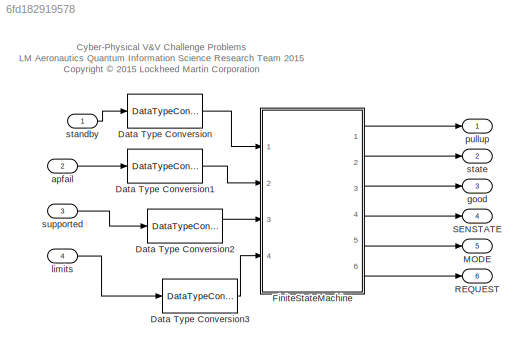
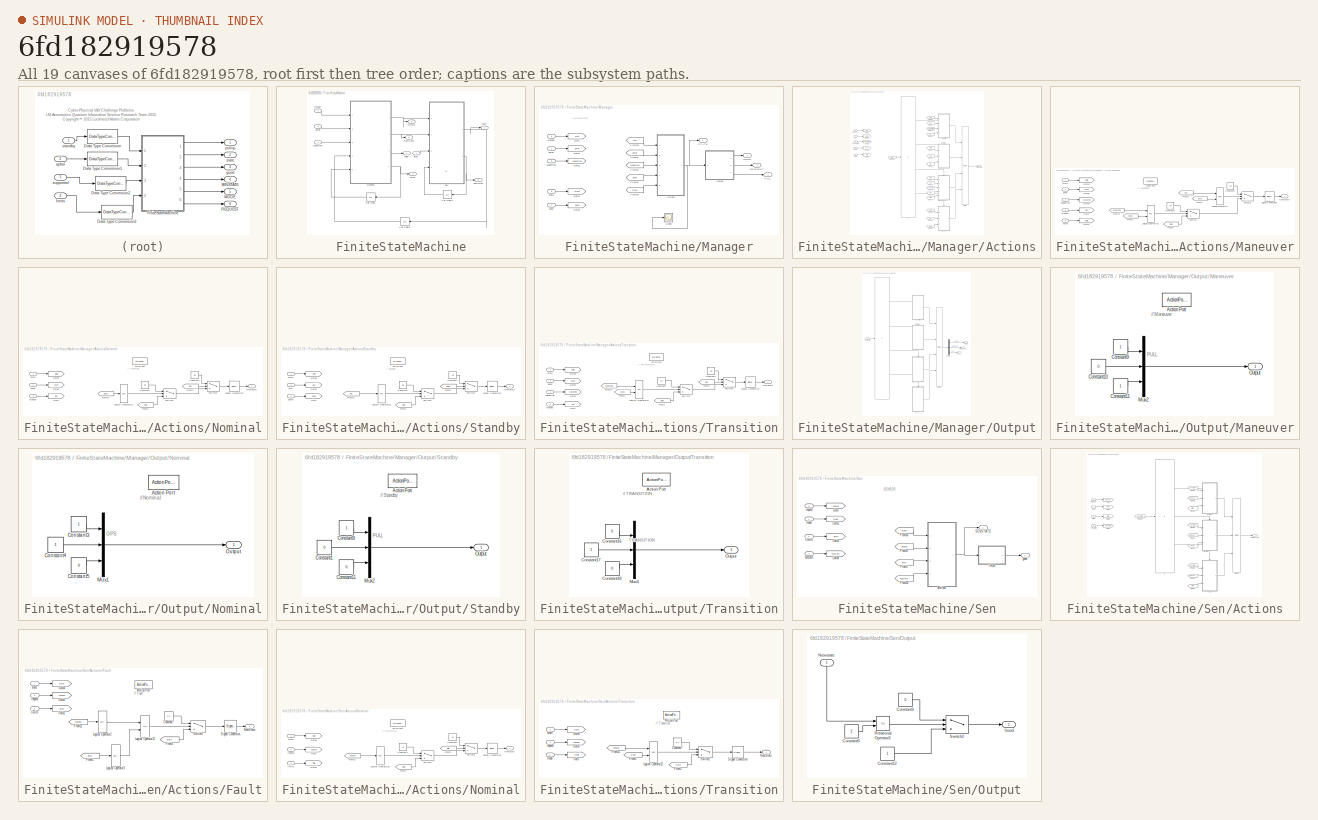
[diagram: thumbnail index - all 19 canvases of the model, root first then tree order]
MODEL slx_6fd182919578
KIND model
CONFIG AbsTol = auto
CONFIG FixedStep = auto
CONFIG MaxStep = auto
CONFIG MinStep = auto
CONFIG RelTol = 1e-3
CONFIG SampleTimeConstraint = Unconstrained
CONFIG Solver = FixedStepAuto
CONFIG SolverMode = Auto
CONFIG SolverName = FixedStepAuto
CONFIG StartTime = 0.0
CONFIG StopTime = 10
WORKSPACE source: MAT-file member
WORKSPACE F = [0 0 0 0 0 0 0 0 0 0 0 0 ... (51 elements, 51x1)]
WORKSPACE Ft = 0
BLOCK [DataTypeConversion] Data Type Conversion
  OutDataTypeStr = boolean
  RndMeth = Round
  SaturateOnIntegerOverflow = off
BLOCK [DataTypeConversion] Data Type Conversion1
  OutDataTypeStr = boolean
  RndMeth = Round
  SaturateOnIntegerOverflow = off
BLOCK [DataTypeConversion] Data Type Conversion2
  OutDataTypeStr = boolean
  RndMeth = Round
  SaturateOnIntegerOverflow = off
BLOCK [DataTypeConversion] Data Type Conversion3
  OutDataTypeStr = boolean
  RndMeth = Round
  SaturateOnIntegerOverflow = off
BLOCK [SubSystem] FiniteStateMachine
  Ports = [4, 6]
  RequestExecContextInheritance = off
  Variant = off
BLOCK [Outport] FiniteStateMachine/MODE
  IconDisplay = Port number
  Port = 5
BLOCK [SubSystem] FiniteStateMachine/Manager
  Ports = [5, 4]
  RequestExecContextInheritance = off
  Variant = off
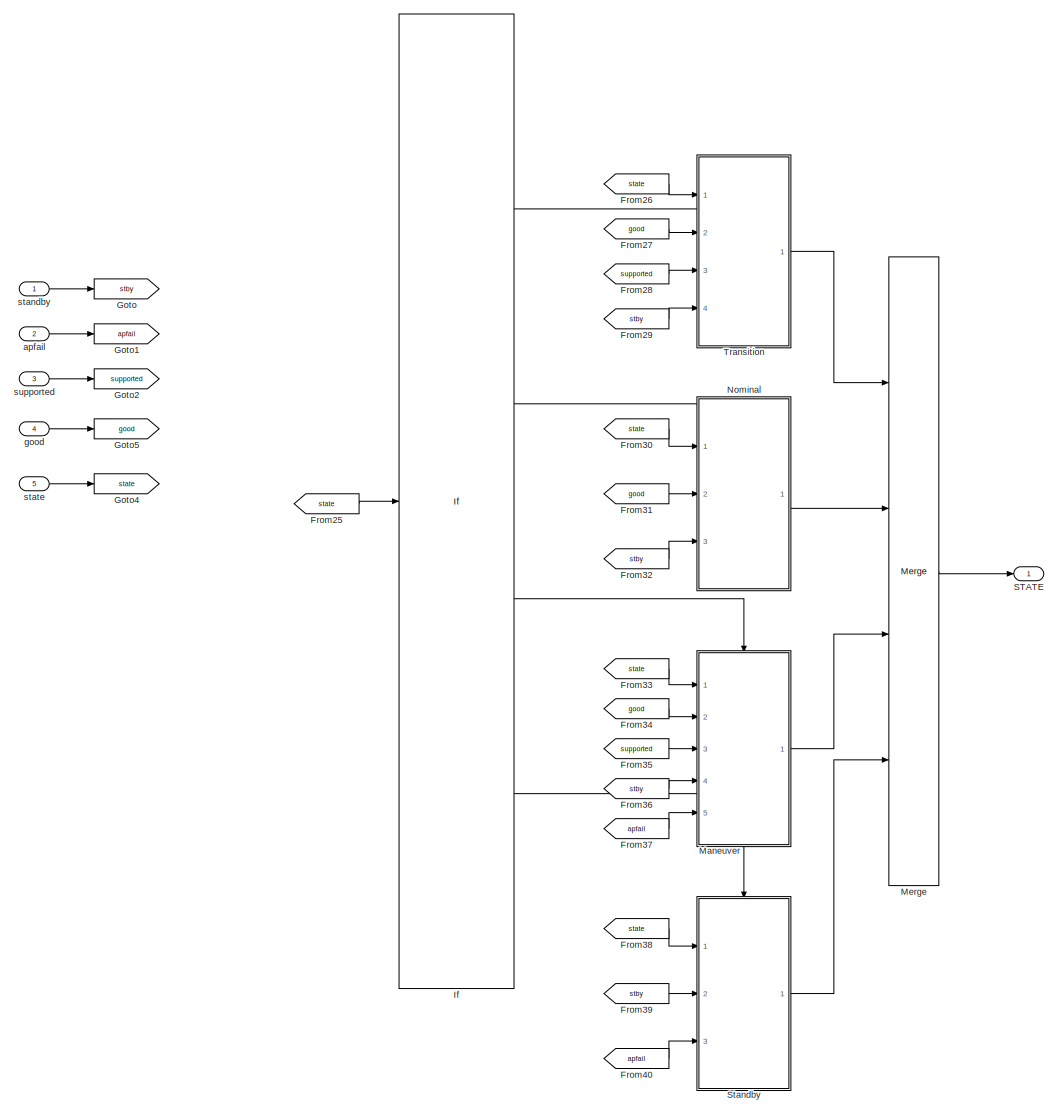
[diagram: FiniteStateMachine/Manager/Actions - part 1/1, most of the canvas]
BLOCK [SubSystem] FiniteStateMachine/Manager/Actions
  Ports = [5, 1]
  RequestExecContextInheritance = off
  Variant = off
BLOCK [From] FiniteStateMachine/Manager/Actions/From25
  GotoTag = state
BLOCK [From] FiniteStateMachine/Manager/Actions/From26
  GotoTag = state
BLOCK [From] FiniteStateMachine/Manager/Actions/From27
  GotoTag = good
BLOCK [From] FiniteStateMachine/Manager/Actions/From28
  GotoTag = supported
BLOCK [From] FiniteStateMachine/Manager/Actions/From29
  GotoTag = stby
BLOCK [From] FiniteStateMachine/Manager/Actions/From30
  GotoTag = state
BLOCK [From] FiniteStateMachine/Manager/Actions/From31
  GotoTag = good
BLOCK [From] FiniteStateMachine/Manager/Actions/From32
  GotoTag = stby
BLOCK [From] FiniteStateMachine/Manager/Actions/From33
  GotoTag = state
BLOCK [From] FiniteStateMachine/Manager/Actions/From34
  GotoTag = good
BLOCK [From] FiniteStateMachine/Manager/Actions/From35
  GotoTag = supported
BLOCK [From] FiniteStateMachine/Manager/Actions/From36
  GotoTag = stby
BLOCK [From] FiniteStateMachine/Manager/Actions/From37
  GotoTag = apfail
BLOCK [From] FiniteStateMachine/Manager/Actions/From38
  GotoTag = state
BLOCK [From] FiniteStateMachine/Manager/Actions/From39
  GotoTag = stby
BLOCK [From] FiniteStateMachine/Manager/Actions/From40
  GotoTag = apfail
BLOCK [Goto] FiniteStateMachine/Manager/Actions/Goto
  GotoTag = stby
BLOCK [Goto] FiniteStateMachine/Manager/Actions/Goto1
  GotoTag = apfail
BLOCK [Goto] FiniteStateMachine/Manager/Actions/Goto2
  GotoTag = supported
BLOCK [Goto] FiniteStateMachine/Manager/Actions/Goto4
  GotoTag = state
BLOCK [Goto] FiniteStateMachine/Manager/Actions/Goto5
  GotoTag = good
BLOCK [If] FiniteStateMachine/Manager/Actions/If
  ElseIfExpressions = u1==1.0, u1==2.0, u1==3.0
  IfExpression = u1==0.0
  Ports = [1, 4]
  ShowElse = off
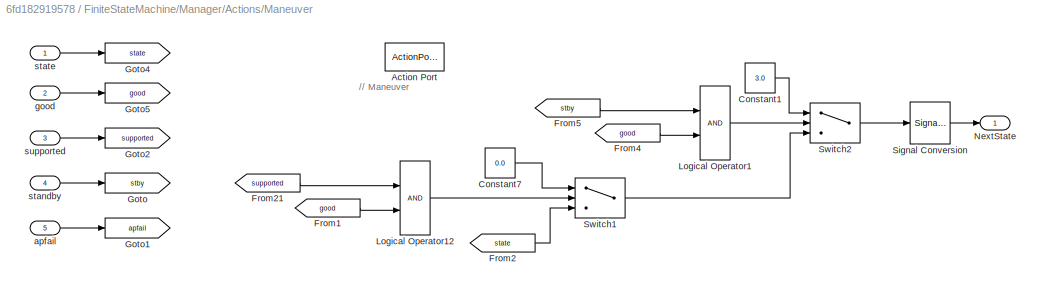
BLOCK [SubSystem] FiniteStateMachine/Manager/Actions/Maneuver
  Ports = [5, 1, 0, 0, 0, 0, 0, 1]
  RequestExecContextInheritance = off
  Variant = off
BLOCK [ActionPort] FiniteStateMachine/Manager/Actions/Maneuver/Action Port
  ActionType = elseif
BLOCK [Constant] FiniteStateMachine/Manager/Actions/Maneuver/Constant1
  Value = 3.0
BLOCK [Constant] FiniteStateMachine/Manager/Actions/Maneuver/Constant7
  Value = 0.0
BLOCK [From] FiniteStateMachine/Manager/Actions/Maneuver/From1
  GotoTag = good
BLOCK [From] FiniteStateMachine/Manager/Actions/Maneuver/From2
  GotoTag = state
BLOCK [From] FiniteStateMachine/Manager/Actions/Maneuver/From21
  GotoTag = supported
BLOCK [From] FiniteStateMachine/Manager/Actions/Maneuver/From4
  GotoTag = good
BLOCK [From] FiniteStateMachine/Manager/Actions/Maneuver/From5
  GotoTag = stby
BLOCK [Goto] FiniteStateMachine/Manager/Actions/Maneuver/Goto
  GotoTag = stby
BLOCK [Goto] FiniteStateMachine/Manager/Actions/Maneuver/Goto1
  GotoTag = apfail
BLOCK [Goto] FiniteStateMachine/Manager/Actions/Maneuver/Goto2
  GotoTag = supported
BLOCK [Goto] FiniteStateMachine/Manager/Actions/Maneuver/Goto4
  GotoTag = state
BLOCK [Goto] FiniteStateMachine/Manager/Actions/Maneuver/Goto5
  GotoTag = good
BLOCK [Logic] FiniteStateMachine/Manager/Actions/Maneuver/Logical Operator1
  AllPortsSameDT = off
  IconShape = distinctive
  OutDataTypeStr = boolean
  Ports = [2, 1]
BLOCK [Logic] FiniteStateMachine/Manager/Actions/Maneuver/Logical Operator12
  AllPortsSameDT = off
  IconShape = distinctive
  OutDataTypeStr = boolean
  Ports = [2, 1]
BLOCK [Outport] FiniteStateMachine/Manager/Actions/Maneuver/NextState
  IconDisplay = Port number
BLOCK [SignalConversion] FiniteStateMachine/Manager/Actions/Maneuver/Signal Conversion
  OverrideOpt = off
BLOCK [Switch] FiniteStateMachine/Manager/Actions/Maneuver/Switch1
  Criteria = u2 ~= 0
  InputSameDT = off
  SaturateOnIntegerOverflow = off
BLOCK [Switch] FiniteStateMachine/Manager/Actions/Maneuver/Switch2
  Criteria = u2 ~= 0
  InputSameDT = off
  SaturateOnIntegerOverflow = off
BLOCK [Inport] FiniteStateMachine/Manager/Actions/Maneuver/apfail
  IconDisplay = Port number
  Port = 5
BLOCK [Inport] FiniteStateMachine/Manager/Actions/Maneuver/good
  IconDisplay = Port number
  Port = 2
BLOCK [Inport] FiniteStateMachine/Manager/Actions/Maneuver/standby
  IconDisplay = Port number
  Port = 4
BLOCK [Inport] FiniteStateMachine/Manager/Actions/Maneuver/state
  IconDisplay = Port number
BLOCK [Inport] FiniteStateMachine/Manager/Actions/Maneuver/supported
  IconDisplay = Port number
  Port = 3
BLOCK [Merge] FiniteStateMachine/Manager/Actions/Merge
  Inputs = 4
  Ports = [4, 1]
BLOCK [SubSystem] FiniteStateMachine/Manager/Actions/Nominal
  Ports = [3, 1, 0, 0, 0, 0, 0, 1]
  RequestExecContextInheritance = off
  Variant = off
BLOCK [ActionPort] FiniteStateMachine/Manager/Actions/Nominal/Action Port
  ActionType = elseif
BLOCK [Constant] FiniteStateMachine/Manager/Actions/Nominal/Constant1
  Value = 3.0
BLOCK [Constant] FiniteStateMachine/Manager/Actions/Nominal/Constant7
  Value = 2.0
BLOCK [From] FiniteStateMachine/Manager/Actions/Nominal/From2
  GotoTag = state
BLOCK [From] FiniteStateMachine/Manager/Actions/Nominal/From21
  GotoTag = good
BLOCK [From] FiniteStateMachine/Manager/Actions/Nominal/From3
  GotoTag = stby
BLOCK [Goto] FiniteStateMachine/Manager/Actions/Nominal/Goto
  GotoTag = stby
BLOCK [Goto] FiniteStateMachine/Manager/Actions/Nominal/Goto5
  GotoTag = good
BLOCK [Goto] FiniteStateMachine/Manager/Actions/Nominal/Goto9
  GotoTag = state
BLOCK [Logic] FiniteStateMachine/Manager/Actions/Nominal/Logical Operator12
  AllPortsSameDT = off
  IconShape = distinctive
  Operator = NOT
  OutDataTypeStr = boolean
  Ports = [1, 1]
BLOCK [Outport] FiniteStateMachine/Manager/Actions/Nominal/NextState
  IconDisplay = Port number
BLOCK [SignalConversion] FiniteStateMachine/Manager/Actions/Nominal/Signal Conversion
  OverrideOpt = off
BLOCK [Switch] FiniteStateMachine/Manager/Actions/Nominal/Switch1
  Criteria = u2 ~= 0
  InputSameDT = off
  SaturateOnIntegerOverflow = off
BLOCK [Switch] FiniteStateMachine/Manager/Actions/Nominal/Switch2
  Criteria = u2 ~= 0
  InputSameDT = off
  SaturateOnIntegerOverflow = off
BLOCK [Inport] FiniteStateMachine/Manager/Actions/Nominal/good
  IconDisplay = Port number
  Port = 2
BLOCK [Inport] FiniteStateMachine/Manager/Actions/Nominal/standby
  IconDisplay = Port number
  Port = 3
BLOCK [Inport] FiniteStateMachine/Manager/Actions/Nominal/state
  IconDisplay = Port number
BLOCK [Outport] FiniteStateMachine/Manager/Actions/STATE
  IconDisplay = Port number
BLOCK [SubSystem] FiniteStateMachine/Manager/Actions/Standby
  Ports = [3, 1, 0, 0, 0, 0, 0, 1]
  RequestExecContextInheritance = off
  Variant = off
BLOCK [ActionPort] FiniteStateMachine/Manager/Actions/Standby/Action Port
  ActionType = elseif
BLOCK [Constant] FiniteStateMachine/Manager/Actions/Standby/Constant1
  Value = 2.0
BLOCK [Constant] FiniteStateMachine/Manager/Actions/Standby/Constant7
  Value = 0.0
BLOCK [From] FiniteStateMachine/Manager/Actions/Standby/From2
  GotoTag = state
BLOCK [From] FiniteStateMachine/Manager/Actions/Standby/From21
  GotoTag = stby
BLOCK [From] FiniteStateMachine/Manager/Actions/Standby/From3
  GotoTag = apfail
BLOCK [Goto] FiniteStateMachine/Manager/Actions/Standby/Goto
  GotoTag = apfail
BLOCK [Goto] FiniteStateMachine/Manager/Actions/Standby/Goto5
  GotoTag = stby
BLOCK [Goto] FiniteStateMachine/Manager/Actions/Standby/Goto9
  GotoTag = state
BLOCK [Logic] FiniteStateMachine/Manager/Actions/Standby/Logical Operator12
  AllPortsSameDT = off
  IconShape = distinctive
  Operator = NOT
  OutDataTypeStr = boolean
  Ports = [1, 1]
BLOCK [Outport] FiniteStateMachine/Manager/Actions/Standby/NextState
  IconDisplay = Port number
BLOCK [SignalConversion] FiniteStateMachine/Manager/Actions/Standby/Signal Conversion
  OverrideOpt = off
BLOCK [Switch] FiniteStateMachine/Manager/Actions/Standby/Switch1
  Criteria = u2 ~= 0
  InputSameDT = off
  SaturateOnIntegerOverflow = off
BLOCK [Switch] FiniteStateMachine/Manager/Actions/Standby/Switch2
  Criteria = u2 ~= 0
  InputSameDT = off
  SaturateOnIntegerOverflow = off
BLOCK [Inport] FiniteStateMachine/Manager/Actions/Standby/apfail
  IconDisplay = Port number
  Port = 3
BLOCK [Inport] FiniteStateMachine/Manager/Actions/Standby/state
  IconDisplay = Port number
BLOCK [Inport] FiniteStateMachine/Manager/Actions/Standby/stby
  IconDisplay = Port number
  Port = 2
BLOCK [SubSystem] FiniteStateMachine/Manager/Actions/Transition
  Ports = [4, 1, 0, 0, 0, 0, 0, 1]
  RequestExecContextInheritance = off
  Variant = off
BLOCK [ActionPort] FiniteStateMachine/Manager/Actions/Transition/Action Port
  ActionType = then
BLOCK [Constant] FiniteStateMachine/Manager/Actions/Transition/Constant1
  Value = 3.0
BLOCK [Constant] FiniteStateMachine/Manager/Actions/Transition/Constant7
  Value = 1.0
BLOCK [From] FiniteStateMachine/Manager/Actions/Transition/From1
  GotoTag = good
BLOCK [From] FiniteStateMachine/Manager/Actions/Transition/From2
  GotoTag = state
BLOCK [From] FiniteStateMachine/Manager/Actions/Transition/From21
  GotoTag = supported
BLOCK [From] FiniteStateMachine/Manager/Actions/Transition/From3
  GotoTag = stby
BLOCK [Goto] FiniteStateMachine/Manager/Actions/Transition/Goto
  GotoTag = stby
BLOCK [Goto] FiniteStateMachine/Manager/Actions/Transition/Goto2
  GotoTag = supported
BLOCK [Goto] FiniteStateMachine/Manager/Actions/Transition/Goto5
  GotoTag = good
BLOCK [Goto] FiniteStateMachine/Manager/Actions/Transition/Goto9
  GotoTag = state
BLOCK [Logic] FiniteStateMachine/Manager/Actions/Transition/Logical Operator12
  AllPortsSameDT = off
  IconShape = distinctive
  OutDataTypeStr = boolean
  Ports = [2, 1]
BLOCK [Outport] FiniteStateMachine/Manager/Actions/Transition/NextState
  IconDisplay = Port number
BLOCK [SignalConversion] FiniteStateMachine/Manager/Actions/Transition/Signal Conversion
  OverrideOpt = off
BLOCK [Switch] FiniteStateMachine/Manager/Actions/Transition/Switch1
  Criteria = u2 ~= 0
  InputSameDT = off
  SaturateOnIntegerOverflow = off
BLOCK [Switch] FiniteStateMachine/Manager/Actions/Transition/Switch2
  Criteria = u2 ~= 0
  InputSameDT = off
  SaturateOnIntegerOverflow = off
BLOCK [Inport] FiniteStateMachine/Manager/Actions/Transition/good
  IconDisplay = Port number
  Port = 2
BLOCK [Inport] FiniteStateMachine/Manager/Actions/Transition/standby
  IconDisplay = Port number
  Port = 4
BLOCK [Inport] FiniteStateMachine/Manager/Actions/Transition/state
  IconDisplay = Port number
BLOCK [Inport] FiniteStateMachine/Manager/Actions/Transition/supported
  IconDisplay = Port number
  Port = 3
BLOCK [Inport] FiniteStateMachine/Manager/Actions/apfail
  IconDisplay = Port number
  Port = 2
BLOCK [Inport] FiniteStateMachine/Manager/Actions/good
  IconDisplay = Port number
  Port = 4
BLOCK [Inport] FiniteStateMachine/Manager/Actions/standby
  IconDisplay = Port number
BLOCK [Inport] FiniteStateMachine/Manager/Actions/state
  IconDisplay = Port number
  Port = 5
BLOCK [Inport] FiniteStateMachine/Manager/Actions/supported
  IconDisplay = Port number
  Port = 3
BLOCK [From] FiniteStateMachine/Manager/From33
  GotoTag = state
BLOCK [From] FiniteStateMachine/Manager/From34
  GotoTag = good
BLOCK [From] FiniteStateMachine/Manager/From35
  GotoTag = supported
BLOCK [From] FiniteStateMachine/Manager/From36
  GotoTag = stby
BLOCK [From] FiniteStateMachine/Manager/From37
  GotoTag = apfail
BLOCK [Goto] FiniteStateMachine/Manager/Goto
  GotoTag = stby
BLOCK [Goto] FiniteStateMachine/Manager/Goto1
  GotoTag = apfail
BLOCK [Goto] FiniteStateMachine/Manager/Goto2
  GotoTag = supported
BLOCK [Goto] FiniteStateMachine/Manager/Goto4
  GotoTag = state
BLOCK [Goto] FiniteStateMachine/Manager/Goto5
  GotoTag = good
BLOCK [Outport] FiniteStateMachine/Manager/MODE
  IconDisplay = Port number
BLOCK [SubSystem] FiniteStateMachine/Manager/Output
  Ports = [1, 3]
  RequestExecContextInheritance = off
  Variant = off
BLOCK [Demux] FiniteStateMachine/Manager/Output/Demux
  DisplayOption = bar
  Outputs = 3
  Ports = [1, 3]
BLOCK [If] FiniteStateMachine/Manager/Output/If
  ElseIfExpressions = u1==1.0, u1==2.0, u1==3.0
  IfExpression = u1==0.0
  Ports = [1, 4]
  ShowElse = off
BLOCK [Outport] FiniteStateMachine/Manager/Output/MODE
  IconDisplay = Port number
BLOCK [SubSystem] FiniteStateMachine/Manager/Output/Maneuver
  Ports = [0, 1, 0, 0, 0, 0, 0, 1]
  RequestExecContextInheritance = off
  Variant = off
BLOCK [ActionPort] FiniteStateMachine/Manager/Output/Maneuver/Action Port
  ActionType = elseif
BLOCK [Constant] FiniteStateMachine/Manager/Output/Maneuver/Constant10
  OutDataTypeStr = boolean
  Value = 0
BLOCK [Constant] FiniteStateMachine/Manager/Output/Maneuver/Constant11
  OutDataTypeStr = boolean
BLOCK [Constant] FiniteStateMachine/Manager/Output/Maneuver/Constant9
  OutDataTypeStr = boolean
BLOCK [Mux] FiniteStateMachine/Manager/Output/Maneuver/Mux2
  DisplayOption = bar
  Inputs = 3
  Ports = [3, 1]
BLOCK [Outport] FiniteStateMachine/Manager/Output/Maneuver/Output
  IconDisplay = Port number
BLOCK [Merge] FiniteStateMachine/Manager/Output/Merge
  Inputs = 4
  Ports = [4, 1]
BLOCK [Inport] FiniteStateMachine/Manager/Output/Newstate
  IconDisplay = Port number
BLOCK [SubSystem] FiniteStateMachine/Manager/Output/Nominal
  Ports = [0, 1, 0, 0, 0, 0, 0, 1]
  RequestExecContextInheritance = off
  Variant = off
BLOCK [ActionPort] FiniteStateMachine/Manager/Output/Nominal/Action Port
  ActionType = elseif
BLOCK [Constant] FiniteStateMachine/Manager/Output/Nominal/Constant3
  OutDataTypeStr = boolean
BLOCK [Constant] FiniteStateMachine/Manager/Output/Nominal/Constant4
  OutDataTypeStr = boolean
BLOCK [Constant] FiniteStateMachine/Manager/Output/Nominal/Constant5
  OutDataTypeStr = boolean
  Value = 0
BLOCK [Mux] FiniteStateMachine/Manager/Output/Nominal/Mux1
  DisplayOption = bar
  Inputs = 3
  Ports = [3, 1]
BLOCK [Outport] FiniteStateMachine/Manager/Output/Nominal/Output
  IconDisplay = Port number
BLOCK [Outport] FiniteStateMachine/Manager/Output/PULL
  IconDisplay = Port number
  Port = 3
BLOCK [Outport] FiniteStateMachine/Manager/Output/REQUEST
  IconDisplay = Port number
  Port = 2
BLOCK [SubSystem] FiniteStateMachine/Manager/Output/Standby
  Ports = [0, 1, 0, 0, 0, 0, 0, 1]
  RequestExecContextInheritance = off
  Variant = off
BLOCK [ActionPort] FiniteStateMachine/Manager/Output/Standby/Action Port
  ActionType = elseif
BLOCK [Constant] FiniteStateMachine/Manager/Output/Standby/Constant1
  OutDataTypeStr = boolean
  Value = 0
BLOCK [Constant] FiniteStateMachine/Manager/Output/Standby/Constant11
  OutDataTypeStr = boolean
  Value = 0
BLOCK [Constant] FiniteStateMachine/Manager/Output/Standby/Constant9
  OutDataTypeStr = boolean
BLOCK [Mux] FiniteStateMachine/Manager/Output/Standby/Mux2
  DisplayOption = bar
  Inputs = 3
  Ports = [3, 1]
BLOCK [Outport] FiniteStateMachine/Manager/Output/Standby/Output
  IconDisplay = Port number
BLOCK [SubSystem] FiniteStateMachine/Manager/Output/Transition
  Ports = [0, 1, 0, 0, 0, 0, 0, 1]
  RequestExecContextInheritance = off
  Variant = off
BLOCK [ActionPort] FiniteStateMachine/Manager/Output/Transition/Action Port
  ActionType = then
BLOCK [Constant] FiniteStateMachine/Manager/Output/Transition/Constant16
  OutDataTypeStr = boolean
  Value = 0
BLOCK [Constant] FiniteStateMachine/Manager/Output/Transition/Constant17
  OutDataTypeStr = boolean
BLOCK [Constant] FiniteStateMachine/Manager/Output/Transition/Constant18
  OutDataTypeStr = boolean
  Value = 0
BLOCK [Mux] FiniteStateMachine/Manager/Output/Transition/Mux4
  DisplayOption = bar
  Inputs = 3
  Ports = [3, 1]
BLOCK [Outport] FiniteStateMachine/Manager/Output/Transition/Output
  IconDisplay = Port number
BLOCK [Outport] FiniteStateMachine/Manager/PULL
  IconDisplay = Port number
  Port = 3
BLOCK [Outport] FiniteStateMachine/Manager/REQUEST
  IconDisplay = Port number
  Port = 2
BLOCK [Outport] FiniteStateMachine/Manager/STATE
  IconDisplay = Port number
  Port = 4
BLOCK [Scope] FiniteStateMachine/Manager/Scope
  Ports = [1]
  ScopeSpecificationString = Simulink.scopes.TimeScopeBlockCfg('CurrentConfiguration', extmgr.ConfigurationSet(extmgr.Configuration('Core','General UI',true),extmgr.Configuration('Core','Source UI',true),extmgr.Configuration('Sources','WiredSimulink',true,'DataLoggingVariableName','ScopeData1'),extmgr.Configuration('Visuals','Time Domain',true,'SerializedDisplays',{struct('MinYLimReal','-1.00000','MaxYLimReal','1.00000','YLab...<+1395ch>
BLOCK [Inport] FiniteStateMachine/Manager/apfail
  IconDisplay = Port number
  Port = 2
BLOCK [Inport] FiniteStateMachine/Manager/good
  IconDisplay = Port number
  Port = 4
BLOCK [Inport] FiniteStateMachine/Manager/standby
  IconDisplay = Port number
BLOCK [Inport] FiniteStateMachine/Manager/state
  IconDisplay = Port number
  Port = 5
BLOCK [Inport] FiniteStateMachine/Manager/supported
  IconDisplay = Port number
  Port = 3
BLOCK [Outport] FiniteStateMachine/REQUEST
  IconDisplay = Port number
  Port = 6
BLOCK [Outport] FiniteStateMachine/SENSTATE
  IconDisplay = Port number
  Port = 4
BLOCK [Outport] FiniteStateMachine/STATE
  IconDisplay = Port number
  Port = 2
BLOCK [SubSystem] FiniteStateMachine/Sen
  Ports = [4, 2]
  RequestExecContextInheritance = off
  Variant = off
BLOCK [SubSystem] FiniteStateMachine/Sen/Actions
  Ports = [4, 1]
  RequestExecContextInheritance = off
  Variant = off
BLOCK [SubSystem] FiniteStateMachine/Sen/Actions/Fault
  Ports = [3, 1, 0, 0, 0, 0, 0, 1]
  RequestExecContextInheritance = off
  Variant = off
BLOCK [ActionPort] FiniteStateMachine/Sen/Actions/Fault/Action Port
  ActionType = elseif
BLOCK [Constant] FiniteStateMachine/Sen/Actions/Fault/Constant7
  Value = 1.0
BLOCK [From] FiniteStateMachine/Sen/Actions/Fault/From1
  GotoTag = limits
BLOCK [From] FiniteStateMachine/Sen/Actions/Fault/From2
  GotoTag = state
BLOCK [From] FiniteStateMachine/Sen/Actions/Fault/From21
  GotoTag = request
BLOCK [Goto] FiniteStateMachine/Sen/Actions/Fault/Goto2
  GotoTag = limits
BLOCK [Goto] FiniteStateMachine/Sen/Actions/Fault/Goto4
  GotoTag = state
BLOCK [Goto] FiniteStateMachine/Sen/Actions/Fault/Goto5
  GotoTag = request
BLOCK [Logic] FiniteStateMachine/Sen/Actions/Fault/Logical Operator12
  AllPortsSameDT = off
  IconShape = distinctive
  Operator = OR
  OutDataTypeStr = boolean
  Ports = [2, 1]
BLOCK [Logic] FiniteStateMachine/Sen/Actions/Fault/Logical Operator2
  AllPortsSameDT = off
  IconShape = distinctive
  Operator = NOT
  OutDataTypeStr = boolean
  Ports = [1, 1]
BLOCK [Logic] FiniteStateMachine/Sen/Actions/Fault/Logical Operator3
  AllPortsSameDT = off
  IconShape = distinctive
  Operator = NOT
  OutDataTypeStr = boolean
  Ports = [1, 1]
BLOCK [Outport] FiniteStateMachine/Sen/Actions/Fault/NextState
  IconDisplay = Port number
BLOCK [SignalConversion] FiniteStateMachine/Sen/Actions/Fault/Signal Conversion
  OverrideOpt = off
BLOCK [Switch] FiniteStateMachine/Sen/Actions/Fault/Switch1
  Criteria = u2 ~= 0
  InputSameDT = off
  SaturateOnIntegerOverflow = off
BLOCK [Inport] FiniteStateMachine/Sen/Actions/Fault/limits
  IconDisplay = Port number
  Port = 3
BLOCK [Inport] FiniteStateMachine/Sen/Actions/Fault/request
  IconDisplay = Port number
  Port = 2
BLOCK [Inport] FiniteStateMachine/Sen/Actions/Fault/state
  IconDisplay = Port number
BLOCK [From] FiniteStateMachine/Sen/Actions/From25
  GotoTag = senstate
BLOCK [From] FiniteStateMachine/Sen/Actions/From26
  GotoTag = senstate
BLOCK [From] FiniteStateMachine/Sen/Actions/From28
  GotoTag = request
BLOCK [From] FiniteStateMachine/Sen/Actions/From29
  GotoTag = limits
BLOCK [From] FiniteStateMachine/Sen/Actions/From30
  GotoTag = senstate
BLOCK [From] FiniteStateMachine/Sen/Actions/From31
  GotoTag = request
BLOCK [From] FiniteStateMachine/Sen/Actions/From32
  GotoTag = mode
BLOCK [From] FiniteStateMachine/Sen/Actions/From33
  GotoTag = senstate
BLOCK [From] FiniteStateMachine/Sen/Actions/From34
  GotoTag = request
BLOCK [From] FiniteStateMachine/Sen/Actions/From35
  GotoTag = limits
BLOCK [Goto] FiniteStateMachine/Sen/Actions/Goto
  GotoTag = request
BLOCK [Goto] FiniteStateMachine/Sen/Actions/Goto1
  GotoTag = mode
BLOCK [Goto] FiniteStateMachine/Sen/Actions/Goto3
  GotoTag = limits
BLOCK [Goto] FiniteStateMachine/Sen/Actions/Goto4
  GotoTag = senstate
BLOCK [If] FiniteStateMachine/Sen/Actions/If
  ElseIfExpressions = u1==1.0, u1==2.0
  IfExpression = u1==0.0
  Ports = [1, 3]
  ShowElse = off
BLOCK [Merge] FiniteStateMachine/Sen/Actions/Merge
  Inputs = 3
  Ports = [3, 1]
BLOCK [SubSystem] FiniteStateMachine/Sen/Actions/Nominal
  Ports = [3, 1, 0, 0, 0, 0, 0, 1]
  RequestExecContextInheritance = off
  Variant = off
BLOCK [ActionPort] FiniteStateMachine/Sen/Actions/Nominal/Action Port
  ActionType = then
BLOCK [Constant] FiniteStateMachine/Sen/Actions/Nominal/Constant1
  Value = 2.0
BLOCK [Constant] FiniteStateMachine/Sen/Actions/Nominal/Constant7
  Value = 1.0
BLOCK [From] FiniteStateMachine/Sen/Actions/Nominal/From2
  GotoTag = state
BLOCK [From] FiniteStateMachine/Sen/Actions/Nominal/From21
  GotoTag = request
BLOCK [From] FiniteStateMachine/Sen/Actions/Nominal/From3
  GotoTag = limits
BLOCK [Goto] FiniteStateMachine/Sen/Actions/Nominal/Goto
  GotoTag = request
BLOCK [Goto] FiniteStateMachine/Sen/Actions/Nominal/Goto3
  GotoTag = limits
BLOCK [Goto] FiniteStateMachine/Sen/Actions/Nominal/Goto9
  GotoTag = state
BLOCK [Logic] FiniteStateMachine/Sen/Actions/Nominal/Logical Operator12
  AllPortsSameDT = off
  IconShape = distinctive
  Operator = NOT
  OutDataTypeStr = boolean
  Ports = [1, 1]
BLOCK [Outport] FiniteStateMachine/Sen/Actions/Nominal/NextState
  IconDisplay = Port number
BLOCK [SignalConversion] FiniteStateMachine/Sen/Actions/Nominal/Signal Conversion
  OverrideOpt = off
BLOCK [Switch] FiniteStateMachine/Sen/Actions/Nominal/Switch1
  Criteria = u2 ~= 0
  InputSameDT = off
  SaturateOnIntegerOverflow = off
BLOCK [Switch] FiniteStateMachine/Sen/Actions/Nominal/Switch2
  Criteria = u2 ~= 0
  InputSameDT = off
  SaturateOnIntegerOverflow = off
BLOCK [Inport] FiniteStateMachine/Sen/Actions/Nominal/limits
  IconDisplay = Port number
  Port = 3
BLOCK [Inport] FiniteStateMachine/Sen/Actions/Nominal/request
  IconDisplay = Port number
  Port = 2
BLOCK [Inport] FiniteStateMachine/Sen/Actions/Nominal/state
  IconDisplay = Port number
BLOCK [Outport] FiniteStateMachine/Sen/Actions/SENSTATE
  IconDisplay = Port number
BLOCK [SubSystem] FiniteStateMachine/Sen/Actions/Transition
  Ports = [3, 1, 0, 0, 0, 0, 0, 1]
  RequestExecContextInheritance = off
  Variant = off
BLOCK [ActionPort] FiniteStateMachine/Sen/Actions/Transition/Action Port
  ActionType = elseif
BLOCK [Constant] FiniteStateMachine/Sen/Actions/Transition/Constant7
  Value = 0.0
BLOCK [From] FiniteStateMachine/Sen/Actions/Transition/From1
  GotoTag = mode
BLOCK [From] FiniteStateMachine/Sen/Actions/Transition/From2
  GotoTag = state
BLOCK [From] FiniteStateMachine/Sen/Actions/Transition/From21
  GotoTag = request
BLOCK [Goto] FiniteStateMachine/Sen/Actions/Transition/Goto
  GotoTag = mode
BLOCK [Goto] FiniteStateMachine/Sen/Actions/Transition/Goto5
  GotoTag = request
BLOCK [Goto] FiniteStateMachine/Sen/Actions/Transition/Goto9
  GotoTag = state
BLOCK [Logic] FiniteStateMachine/Sen/Actions/Transition/Logical Operator12
  AllPortsSameDT = off
  IconShape = distinctive
  OutDataTypeStr = boolean
  Ports = [2, 1]
BLOCK [Outport] FiniteStateMachine/Sen/Actions/Transition/NextState
  IconDisplay = Port number
BLOCK [SignalConversion] FiniteStateMachine/Sen/Actions/Transition/Signal Conversion
  OverrideOpt = off
BLOCK [Switch] FiniteStateMachine/Sen/Actions/Transition/Switch1
  Criteria = u2 ~= 0
  InputSameDT = off
  SaturateOnIntegerOverflow = off
BLOCK [Inport] FiniteStateMachine/Sen/Actions/Transition/mode
  IconDisplay = Port number
  Port = 3
BLOCK [Inport] FiniteStateMachine/Sen/Actions/Transition/request
  IconDisplay = Port number
  Port = 2
BLOCK [Inport] FiniteStateMachine/Sen/Actions/Transition/state
  IconDisplay = Port number
BLOCK [Inport] FiniteStateMachine/Sen/Actions/limits
  IconDisplay = Port number
  Port = 3
BLOCK [Inport] FiniteStateMachine/Sen/Actions/mode
  IconDisplay = Port number
BLOCK [Inport] FiniteStateMachine/Sen/Actions/request
  IconDisplay = Port number
  Port = 2
BLOCK [Inport] FiniteStateMachine/Sen/Actions/senstate
  IconDisplay = Port number
  Port = 4
BLOCK [From] FiniteStateMachine/Sen/From1
  GotoTag = limits
BLOCK [From] FiniteStateMachine/Sen/From33
  GotoTag = senstate
BLOCK [From] FiniteStateMachine/Sen/From36
  GotoTag = mode
BLOCK [From] FiniteStateMachine/Sen/From37
  GotoTag = request
BLOCK [Goto] FiniteStateMachine/Sen/Goto
  GotoTag = request
BLOCK [Goto] FiniteStateMachine/Sen/Goto1
  GotoTag = mode
BLOCK [Goto] FiniteStateMachine/Sen/Goto3
  GotoTag = limits
BLOCK [Goto] FiniteStateMachine/Sen/Goto4
  GotoTag = senstate
BLOCK [SubSystem] FiniteStateMachine/Sen/Output
  Ports = [1, 1]
  RequestExecContextInheritance = off
  Variant = off
BLOCK [Constant] FiniteStateMachine/Sen/Output/Constant12
  OutDataTypeStr = boolean
BLOCK [Constant] FiniteStateMachine/Sen/Output/Constant6
  Value = 2
BLOCK [Constant] FiniteStateMachine/Sen/Output/Constant9
  OutDataTypeStr = boolean
  Value = 0
BLOCK [Outport] FiniteStateMachine/Sen/Output/Good
  IconDisplay = Port number
BLOCK [Inport] FiniteStateMachine/Sen/Output/Newstate
  IconDisplay = Port number
BLOCK [RelationalOperator] FiniteStateMachine/Sen/Output/Relational Operator5
  InputSameDT = off
  Operator = ==
  OutDataTypeStr = boolean
  Ports = [2, 1]
BLOCK [Switch] FiniteStateMachine/Sen/Output/Switch2
  Criteria = u2 ~= 0
  InputSameDT = off
  SaturateOnIntegerOverflow = off
BLOCK [Outport] FiniteStateMachine/Sen/SENSTATE
  IconDisplay = Port number
  Port = 2
BLOCK [Outport] FiniteStateMachine/Sen/good
  IconDisplay = Port number
BLOCK [Inport] FiniteStateMachine/Sen/limits
  IconDisplay = Port number
  Port = 3
BLOCK [Inport] FiniteStateMachine/Sen/mode
  IconDisplay = Port number
BLOCK [Inport] FiniteStateMachine/Sen/request
  IconDisplay = Port number
  Port = 2
BLOCK [Inport] FiniteStateMachine/Sen/senstate
  IconDisplay = Port number
  Port = 4
BLOCK [UnitDelay] FiniteStateMachine/Unit Delay
  InputProcessing = Elements as channels (sample based)
  SampleTime = -1
BLOCK [UnitDelay] FiniteStateMachine/Unit Delay1
  InputProcessing = Elements as channels (sample based)
  SampleTime = -1
BLOCK [UnitDelay] FiniteStateMachine/Unit Delay2
  InitialCondition = 1
  InputProcessing = Elements as channels (sample based)
  SampleTime = -1
BLOCK [Inport] FiniteStateMachine/apfail
  IconDisplay = Port number
  Port = 2
BLOCK [Outport] FiniteStateMachine/good
  IconDisplay = Port number
  Port = 3
BLOCK [Inport] FiniteStateMachine/limits
  IconDisplay = Port number
  Port = 4
BLOCK [Outport] FiniteStateMachine/pullup
  IconDisplay = Port number
BLOCK [Inport] FiniteStateMachine/standby
  IconDisplay = Port number
BLOCK [Inport] FiniteStateMachine/supported
  IconDisplay = Port number
  Port = 3
BLOCK [Outport] MODE
  IconDisplay = Port number
  Port = 5
BLOCK [Outport] REQUEST
  IconDisplay = Port number
  Port = 6
BLOCK [Outport] SENSTATE
  IconDisplay = Port number
  Port = 4
BLOCK [Inport] apfail
  IconDisplay = Port number
  OutDataTypeStr = double
  Port = 2
BLOCK [Outport] good
  IconDisplay = Port number
  Port = 3
BLOCK [Inport] limits
  IconDisplay = Port number
  OutDataTypeStr = double
  Port = 4
BLOCK [Outport] pullup
  IconDisplay = Port number
BLOCK [Inport] standby
  IconDisplay = Port number
  OutDataTypeStr = double
BLOCK [Outport] state
  IconDisplay = Port number
  Port = 2
BLOCK [Inport] supported
  IconDisplay = Port number
  OutDataTypeStr = double
  Port = 3
ANNOTATION (root): Cyber-Physical V&V Challenge Problems LM Aeronautics Quantum Information Science Research Team 2015 <copyright redacted>
ANNOTATION FiniteStateMachine: 51
ANNOTATION FiniteStateMachine/Manager: AUTOPILOT
ANNOTATION FiniteStateMachine/Manager/Actions/Maneuver: // Maneuver
ANNOTATION FiniteStateMachine/Manager/Actions/Nominal: // Nominal
ANNOTATION FiniteStateMachine/Manager/Actions/Standby: // Standby
ANNOTATION FiniteStateMachine/Manager/Actions/Transition: // TRANSITION
ANNOTATION FiniteStateMachine/Manager/Output/Maneuver: // Maneuver
ANNOTATION FiniteStateMachine/Manager/Output/Maneuver: PULL
ANNOTATION FiniteStateMachine/Manager/Output/Nominal: // Nominal
ANNOTATION FiniteStateMachine/Manager/Output/Nominal: OPS
ANNOTATION FiniteStateMachine/Manager/Output/Standby: // Standby
ANNOTATION FiniteStateMachine/Manager/Output/Standby: PULL
ANNOTATION FiniteStateMachine/Manager/Output/Transition: // TRANSITION
ANNOTATION FiniteStateMachine/Manager/Output/Transition: TRANSITION
ANNOTATION FiniteStateMachine/Sen: SENSOR
ANNOTATION FiniteStateMachine/Sen/Actions/Fault: // Fault
ANNOTATION FiniteStateMachine/Sen/Actions/Nominal: // NOMINAL
ANNOTATION FiniteStateMachine/Sen/Actions/Transition: // Transition
LINE Data Type Conversion1:1 -> FiniteStateMachine:2
LINE Data Type Conversion2:1 -> FiniteStateMachine:3
LINE Data Type Conversion3:1 -> FiniteStateMachine:4
LINE Data Type Conversion:1 -> FiniteStateMachine:1
LINE FiniteStateMachine/Manager/Actions/From25:1 -> FiniteStateMachine/Manager/Actions/If:1
LINE FiniteStateMachine/Manager/Actions/From26:1 -> FiniteStateMachine/Manager/Actions/Transition:1
LINE FiniteStateMachine/Manager/Actions/From27:1 -> FiniteStateMachine/Manager/Actions/Transition:2
LINE FiniteStateMachine/Manager/Actions/From28:1 -> FiniteStateMachine/Manager/Actions/Transition:3
LINE FiniteStateMachine/Manager/Actions/From29:1 -> FiniteStateMachine/Manager/Actions/Transition:4
LINE FiniteStateMachine/Manager/Actions/From30:1 -> FiniteStateMachine/Manager/Actions/Nominal:1
LINE FiniteStateMachine/Manager/Actions/From31:1 -> FiniteStateMachine/Manager/Actions/Nominal:2
LINE FiniteStateMachine/Manager/Actions/From32:1 -> FiniteStateMachine/Manager/Actions/Nominal:3
LINE FiniteStateMachine/Manager/Actions/From33:1 -> FiniteStateMachine/Manager/Actions/Maneuver:1
LINE FiniteStateMachine/Manager/Actions/From34:1 -> FiniteStateMachine/Manager/Actions/Maneuver:2
LINE FiniteStateMachine/Manager/Actions/From35:1 -> FiniteStateMachine/Manager/Actions/Maneuver:3
LINE FiniteStateMachine/Manager/Actions/From36:1 -> FiniteStateMachine/Manager/Actions/Maneuver:4
LINE FiniteStateMachine/Manager/Actions/From37:1 -> FiniteStateMachine/Manager/Actions/Maneuver:5
LINE FiniteStateMachine/Manager/Actions/From38:1 -> FiniteStateMachine/Manager/Actions/Standby:1
LINE FiniteStateMachine/Manager/Actions/From39:1 -> FiniteStateMachine/Manager/Actions/Standby:2
LINE FiniteStateMachine/Manager/Actions/From40:1 -> FiniteStateMachine/Manager/Actions/Standby:3
LINE FiniteStateMachine/Manager/Actions/If:1 -> FiniteStateMachine/Manager/Actions/Transition:ifaction
LINE FiniteStateMachine/Manager/Actions/If:2 -> FiniteStateMachine/Manager/Actions/Nominal:ifaction
LINE FiniteStateMachine/Manager/Actions/If:3 -> FiniteStateMachine/Manager/Actions/Maneuver:ifaction
LINE FiniteStateMachine/Manager/Actions/If:4 -> FiniteStateMachine/Manager/Actions/Standby:ifaction
LINE FiniteStateMachine/Manager/Actions/Maneuver/Constant1:1 -> FiniteStateMachine/Manager/Actions/Maneuver/Switch2:1
LINE FiniteStateMachine/Manager/Actions/Maneuver/Constant7:1 -> FiniteStateMachine/Manager/Actions/Maneuver/Switch1:1
LINE FiniteStateMachine/Manager/Actions/Maneuver/From1:1 -> FiniteStateMachine/Manager/Actions/Maneuver/Logical Operator12:2
LINE FiniteStateMachine/Manager/Actions/Maneuver/From21:1 -> FiniteStateMachine/Manager/Actions/Maneuver/Logical Operator12:1
LINE FiniteStateMachine/Manager/Actions/Maneuver/From2:1 -> FiniteStateMachine/Manager/Actions/Maneuver/Switch1:3
LINE FiniteStateMachine/Manager/Actions/Maneuver/From4:1 -> FiniteStateMachine/Manager/Actions/Maneuver/Logical Operator1:2
LINE FiniteStateMachine/Manager/Actions/Maneuver/From5:1 -> FiniteStateMachine/Manager/Actions/Maneuver/Logical Operator1:1
LINE FiniteStateMachine/Manager/Actions/Maneuver/Logical Operator12:1 -> FiniteStateMachine/Manager/Actions/Maneuver/Switch1:2
LINE FiniteStateMachine/Manager/Actions/Maneuver/Logical Operator1:1 -> FiniteStateMachine/Manager/Actions/Maneuver/Switch2:2
LINE FiniteStateMachine/Manager/Actions/Maneuver/Signal Conversion:1 -> FiniteStateMachine/Manager/Actions/Maneuver/NextState:1
LINE FiniteStateMachine/Manager/Actions/Maneuver/Switch1:1 -> FiniteStateMachine/Manager/Actions/Maneuver/Switch2:3
LINE FiniteStateMachine/Manager/Actions/Maneuver/Switch2:1 -> FiniteStateMachine/Manager/Actions/Maneuver/Signal Conversion:1
LINE FiniteStateMachine/Manager/Actions/Maneuver/apfail:1 -> FiniteStateMachine/Manager/Actions/Maneuver/Goto1:1
LINE FiniteStateMachine/Manager/Actions/Maneuver/good:1 -> FiniteStateMachine/Manager/Actions/Maneuver/Goto5:1
LINE FiniteStateMachine/Manager/Actions/Maneuver/standby:1 -> FiniteStateMachine/Manager/Actions/Maneuver/Goto:1
LINE FiniteStateMachine/Manager/Actions/Maneuver/state:1 -> FiniteStateMachine/Manager/Actions/Maneuver/Goto4:1
LINE FiniteStateMachine/Manager/Actions/Maneuver/supported:1 -> FiniteStateMachine/Manager/Actions/Maneuver/Goto2:1
LINE FiniteStateMachine/Manager/Actions/Maneuver:1 -> FiniteStateMachine/Manager/Actions/Merge:3
LINE FiniteStateMachine/Manager/Actions/Merge:1 -> FiniteStateMachine/Manager/Actions/STATE:1
LINE FiniteStateMachine/Manager/Actions/Nominal/Constant1:1 -> FiniteStateMachine/Manager/Actions/Nominal/Switch2:1
LINE FiniteStateMachine/Manager/Actions/Nominal/Constant7:1 -> FiniteStateMachine/Manager/Actions/Nominal/Switch1:1
LINE FiniteStateMachine/Manager/Actions/Nominal/From21:1 -> FiniteStateMachine/Manager/Actions/Nominal/Logical Operator12:1
LINE FiniteStateMachine/Manager/Actions/Nominal/From2:1 -> FiniteStateMachine/Manager/Actions/Nominal/Switch1:3
LINE FiniteStateMachine/Manager/Actions/Nominal/From3:1 -> FiniteStateMachine/Manager/Actions/Nominal/Switch2:2
LINE FiniteStateMachine/Manager/Actions/Nominal/Logical Operator12:1 -> FiniteStateMachine/Manager/Actions/Nominal/Switch1:2
LINE FiniteStateMachine/Manager/Actions/Nominal/Signal Conversion:1 -> FiniteStateMachine/Manager/Actions/Nominal/NextState:1
LINE FiniteStateMachine/Manager/Actions/Nominal/Switch1:1 -> FiniteStateMachine/Manager/Actions/Nominal/Switch2:3
LINE FiniteStateMachine/Manager/Actions/Nominal/Switch2:1 -> FiniteStateMachine/Manager/Actions/Nominal/Signal Conversion:1
LINE FiniteStateMachine/Manager/Actions/Nominal/good:1 -> FiniteStateMachine/Manager/Actions/Nominal/Goto5:1
LINE FiniteStateMachine/Manager/Actions/Nominal/standby:1 -> FiniteStateMachine/Manager/Actions/Nominal/Goto:1
LINE FiniteStateMachine/Manager/Actions/Nominal/state:1 -> FiniteStateMachine/Manager/Actions/Nominal/Goto9:1
LINE FiniteStateMachine/Manager/Actions/Nominal:1 -> FiniteStateMachine/Manager/Actions/Merge:2
LINE FiniteStateMachine/Manager/Actions/Standby/Constant1:1 -> FiniteStateMachine/Manager/Actions/Standby/Switch2:1
LINE FiniteStateMachine/Manager/Actions/Standby/Constant7:1 -> FiniteStateMachine/Manager/Actions/Standby/Switch1:1
LINE FiniteStateMachine/Manager/Actions/Standby/From21:1 -> FiniteStateMachine/Manager/Actions/Standby/Logical Operator12:1
LINE FiniteStateMachine/Manager/Actions/Standby/From2:1 -> FiniteStateMachine/Manager/Actions/Standby/Switch1:3
LINE FiniteStateMachine/Manager/Actions/Standby/From3:1 -> FiniteStateMachine/Manager/Actions/Standby/Switch2:2
LINE FiniteStateMachine/Manager/Actions/Standby/Logical Operator12:1 -> FiniteStateMachine/Manager/Actions/Standby/Switch1:2
LINE FiniteStateMachine/Manager/Actions/Standby/Signal Conversion:1 -> FiniteStateMachine/Manager/Actions/Standby/NextState:1
LINE FiniteStateMachine/Manager/Actions/Standby/Switch1:1 -> FiniteStateMachine/Manager/Actions/Standby/Switch2:3
LINE FiniteStateMachine/Manager/Actions/Standby/Switch2:1 -> FiniteStateMachine/Manager/Actions/Standby/Signal Conversion:1
LINE FiniteStateMachine/Manager/Actions/Standby/apfail:1 -> FiniteStateMachine/Manager/Actions/Standby/Goto:1
LINE FiniteStateMachine/Manager/Actions/Standby/state:1 -> FiniteStateMachine/Manager/Actions/Standby/Goto9:1
LINE FiniteStateMachine/Manager/Actions/Standby/stby:1 -> FiniteStateMachine/Manager/Actions/Standby/Goto5:1
LINE FiniteStateMachine/Manager/Actions/Standby:1 -> FiniteStateMachine/Manager/Actions/Merge:4
LINE FiniteStateMachine/Manager/Actions/Transition/Constant1:1 -> FiniteStateMachine/Manager/Actions/Transition/Switch2:1
LINE FiniteStateMachine/Manager/Actions/Transition/Constant7:1 -> FiniteStateMachine/Manager/Actions/Transition/Switch1:1
LINE FiniteStateMachine/Manager/Actions/Transition/From1:1 -> FiniteStateMachine/Manager/Actions/Transition/Logical Operator12:2
LINE FiniteStateMachine/Manager/Actions/Transition/From21:1 -> FiniteStateMachine/Manager/Actions/Transition/Logical Operator12:1
LINE FiniteStateMachine/Manager/Actions/Transition/From2:1 -> FiniteStateMachine/Manager/Actions/Transition/Switch1:3
LINE FiniteStateMachine/Manager/Actions/Transition/From3:1 -> FiniteStateMachine/Manager/Actions/Transition/Switch2:2
LINE FiniteStateMachine/Manager/Actions/Transition/Logical Operator12:1 -> FiniteStateMachine/Manager/Actions/Transition/Switch1:2
LINE FiniteStateMachine/Manager/Actions/Transition/Signal Conversion:1 -> FiniteStateMachine/Manager/Actions/Transition/NextState:1
LINE FiniteStateMachine/Manager/Actions/Transition/Switch1:1 -> FiniteStateMachine/Manager/Actions/Transition/Switch2:3
LINE FiniteStateMachine/Manager/Actions/Transition/Switch2:1 -> FiniteStateMachine/Manager/Actions/Transition/Signal Conversion:1
LINE FiniteStateMachine/Manager/Actions/Transition/good:1 -> FiniteStateMachine/Manager/Actions/Transition/Goto5:1
LINE FiniteStateMachine/Manager/Actions/Transition/standby:1 -> FiniteStateMachine/Manager/Actions/Transition/Goto:1
LINE FiniteStateMachine/Manager/Actions/Transition/state:1 -> FiniteStateMachine/Manager/Actions/Transition/Goto9:1
LINE FiniteStateMachine/Manager/Actions/Transition/supported:1 -> FiniteStateMachine/Manager/Actions/Transition/Goto2:1
LINE FiniteStateMachine/Manager/Actions/Transition:1 -> FiniteStateMachine/Manager/Actions/Merge:1
LINE FiniteStateMachine/Manager/Actions/apfail:1 -> FiniteStateMachine/Manager/Actions/Goto1:1
LINE FiniteStateMachine/Manager/Actions/good:1 -> FiniteStateMachine/Manager/Actions/Goto5:1
LINE FiniteStateMachine/Manager/Actions/standby:1 -> FiniteStateMachine/Manager/Actions/Goto:1
LINE FiniteStateMachine/Manager/Actions/state:1 -> FiniteStateMachine/Manager/Actions/Goto4:1
LINE FiniteStateMachine/Manager/Actions/supported:1 -> FiniteStateMachine/Manager/Actions/Goto2:1
NET FiniteStateMachine/Manager/Actions:1 -> FiniteStateMachine/Manager/Output:1, FiniteStateMachine/Manager/STATE:1, FiniteStateMachine/Manager/Scope:1
LINE FiniteStateMachine/Manager/From33:1 -> FiniteStateMachine/Manager/Actions:5
LINE FiniteStateMachine/Manager/From34:1 -> FiniteStateMachine/Manager/Actions:4
LINE FiniteStateMachine/Manager/From35:1 -> FiniteStateMachine/Manager/Actions:3
LINE FiniteStateMachine/Manager/From36:1 -> FiniteStateMachine/Manager/Actions:1
LINE FiniteStateMachine/Manager/From37:1 -> FiniteStateMachine/Manager/Actions:2
LINE FiniteStateMachine/Manager/Output/Demux:1 -> FiniteStateMachine/Manager/Output/MODE:1
LINE FiniteStateMachine/Manager/Output/Demux:2 -> FiniteStateMachine/Manager/Output/REQUEST:1
LINE FiniteStateMachine/Manager/Output/Demux:3 -> FiniteStateMachine/Manager/Output/PULL:1
LINE FiniteStateMachine/Manager/Output/If:1 -> FiniteStateMachine/Manager/Output/Transition:ifaction
LINE FiniteStateMachine/Manager/Output/If:2 -> FiniteStateMachine/Manager/Output/Nominal:ifaction
LINE FiniteStateMachine/Manager/Output/If:3 -> FiniteStateMachine/Manager/Output/Maneuver:ifaction
LINE FiniteStateMachine/Manager/Output/If:4 -> FiniteStateMachine/Manager/Output/Standby:ifaction
LINE FiniteStateMachine/Manager/Output/Maneuver/Constant10:1 -> FiniteStateMachine/Manager/Output/Maneuver/Mux2:2
LINE FiniteStateMachine/Manager/Output/Maneuver/Constant11:1 -> FiniteStateMachine/Manager/Output/Maneuver/Mux2:3
LINE FiniteStateMachine/Manager/Output/Maneuver/Constant9:1 -> FiniteStateMachine/Manager/Output/Maneuver/Mux2:1
LINE FiniteStateMachine/Manager/Output/Maneuver/Mux2:1 -> FiniteStateMachine/Manager/Output/Maneuver/Output:1
LINE FiniteStateMachine/Manager/Output/Maneuver:1 -> FiniteStateMachine/Manager/Output/Merge:3
LINE FiniteStateMachine/Manager/Output/Merge:1 -> FiniteStateMachine/Manager/Output/Demux:1
LINE FiniteStateMachine/Manager/Output/Newstate:1 -> FiniteStateMachine/Manager/Output/If:1
LINE FiniteStateMachine/Manager/Output/Nominal/Constant3:1 -> FiniteStateMachine/Manager/Output/Nominal/Mux1:1
LINE FiniteStateMachine/Manager/Output/Nominal/Constant4:1 -> FiniteStateMachine/Manager/Output/Nominal/Mux1:2
LINE FiniteStateMachine/Manager/Output/Nominal/Constant5:1 -> FiniteStateMachine/Manager/Output/Nominal/Mux1:3
LINE FiniteStateMachine/Manager/Output/Nominal/Mux1:1 -> FiniteStateMachine/Manager/Output/Nominal/Output:1
LINE FiniteStateMachine/Manager/Output/Nominal:1 -> FiniteStateMachine/Manager/Output/Merge:2
LINE FiniteStateMachine/Manager/Output/Standby/Constant11:1 -> FiniteStateMachine/Manager/Output/Standby/Mux2:3
LINE FiniteStateMachine/Manager/Output/Standby/Constant1:1 -> FiniteStateMachine/Manager/Output/Standby/Mux2:2
LINE FiniteStateMachine/Manager/Output/Standby/Constant9:1 -> FiniteStateMachine/Manager/Output/Standby/Mux2:1
LINE FiniteStateMachine/Manager/Output/Standby/Mux2:1 -> FiniteStateMachine/Manager/Output/Standby/Output:1
LINE FiniteStateMachine/Manager/Output/Standby:1 -> FiniteStateMachine/Manager/Output/Merge:4
LINE FiniteStateMachine/Manager/Output/Transition/Constant16:1 -> FiniteStateMachine/Manager/Output/Transition/Mux4:1
LINE FiniteStateMachine/Manager/Output/Transition/Constant17:1 -> FiniteStateMachine/Manager/Output/Transition/Mux4:2
LINE FiniteStateMachine/Manager/Output/Transition/Constant18:1 -> FiniteStateMachine/Manager/Output/Transition/Mux4:3
LINE FiniteStateMachine/Manager/Output/Transition/Mux4:1 -> FiniteStateMachine/Manager/Output/Transition/Output:1
LINE FiniteStateMachine/Manager/Output/Transition:1 -> FiniteStateMachine/Manager/Output/Merge:1
LINE FiniteStateMachine/Manager/Output:1 -> FiniteStateMachine/Manager/MODE:1
LINE FiniteStateMachine/Manager/Output:2 -> FiniteStateMachine/Manager/REQUEST:1
LINE FiniteStateMachine/Manager/Output:3 -> FiniteStateMachine/Manager/PULL:1
LINE FiniteStateMachine/Manager/apfail:1 -> FiniteStateMachine/Manager/Goto1:1
LINE FiniteStateMachine/Manager/good:1 -> FiniteStateMachine/Manager/Goto5:1
LINE FiniteStateMachine/Manager/standby:1 -> FiniteStateMachine/Manager/Goto:1
LINE FiniteStateMachine/Manager/state:1 -> FiniteStateMachine/Manager/Goto4:1
LINE FiniteStateMachine/Manager/supported:1 -> FiniteStateMachine/Manager/Goto2:1
NET FiniteStateMachine/Manager:1 -> FiniteStateMachine/MODE:1, FiniteStateMachine/Sen:1
NET FiniteStateMachine/Manager:2 -> FiniteStateMachine/REQUEST:1, FiniteStateMachine/Sen:2
LINE FiniteStateMachine/Manager:3 -> FiniteStateMachine/pullup:1
NET FiniteStateMachine/Manager:4 -> FiniteStateMachine/STATE:1, FiniteStateMachine/Unit Delay:1
LINE FiniteStateMachine/Sen/Actions/Fault/Constant7:1 -> FiniteStateMachine/Sen/Actions/Fault/Switch1:1
LINE FiniteStateMachine/Sen/Actions/Fault/From1:1 -> FiniteStateMachine/Sen/Actions/Fault/Logical Operator3:1
LINE FiniteStateMachine/Sen/Actions/Fault/From21:1 -> FiniteStateMachine/Sen/Actions/Fault/Logical Operator2:1
LINE FiniteStateMachine/Sen/Actions/Fault/From2:1 -> FiniteStateMachine/Sen/Actions/Fault/Switch1:3
LINE FiniteStateMachine/Sen/Actions/Fault/Logical Operator12:1 -> FiniteStateMachine/Sen/Actions/Fault/Switch1:2
LINE FiniteStateMachine/Sen/Actions/Fault/Logical Operator2:1 -> FiniteStateMachine/Sen/Actions/Fault/Logical Operator12:1
LINE FiniteStateMachine/Sen/Actions/Fault/Logical Operator3:1 -> FiniteStateMachine/Sen/Actions/Fault/Logical Operator12:2
LINE FiniteStateMachine/Sen/Actions/Fault/Signal Conversion:1 -> FiniteStateMachine/Sen/Actions/Fault/NextState:1
LINE FiniteStateMachine/Sen/Actions/Fault/Switch1:1 -> FiniteStateMachine/Sen/Actions/Fault/Signal Conversion:1
LINE FiniteStateMachine/Sen/Actions/Fault/limits:1 -> FiniteStateMachine/Sen/Actions/Fault/Goto2:1
LINE FiniteStateMachine/Sen/Actions/Fault/request:1 -> FiniteStateMachine/Sen/Actions/Fault/Goto5:1
LINE FiniteStateMachine/Sen/Actions/Fault/state:1 -> FiniteStateMachine/Sen/Actions/Fault/Goto4:1
LINE FiniteStateMachine/Sen/Actions/Fault:1 -> FiniteStateMachine/Sen/Actions/Merge:3
LINE FiniteStateMachine/Sen/Actions/From25:1 -> FiniteStateMachine/Sen/Actions/If:1
LINE FiniteStateMachine/Sen/Actions/From26:1 -> FiniteStateMachine/Sen/Actions/Nominal:1
LINE FiniteStateMachine/Sen/Actions/From28:1 -> FiniteStateMachine/Sen/Actions/Nominal:2
LINE FiniteStateMachine/Sen/Actions/From29:1 -> FiniteStateMachine/Sen/Actions/Nominal:3
LINE FiniteStateMachine/Sen/Actions/From30:1 -> FiniteStateMachine/Sen/Actions/Transition:1
LINE FiniteStateMachine/Sen/Actions/From31:1 -> FiniteStateMachine/Sen/Actions/Transition:2
LINE FiniteStateMachine/Sen/Actions/From32:1 -> FiniteStateMachine/Sen/Actions/Transition:3
LINE FiniteStateMachine/Sen/Actions/From33:1 -> FiniteStateMachine/Sen/Actions/Fault:1
LINE FiniteStateMachine/Sen/Actions/From34:1 -> FiniteStateMachine/Sen/Actions/Fault:2
LINE FiniteStateMachine/Sen/Actions/From35:1 -> FiniteStateMachine/Sen/Actions/Fault:3
LINE FiniteStateMachine/Sen/Actions/If:1 -> FiniteStateMachine/Sen/Actions/Nominal:ifaction
LINE FiniteStateMachine/Sen/Actions/If:2 -> FiniteStateMachine/Sen/Actions/Transition:ifaction
LINE FiniteStateMachine/Sen/Actions/If:3 -> FiniteStateMachine/Sen/Actions/Fault:ifaction
LINE FiniteStateMachine/Sen/Actions/Merge:1 -> FiniteStateMachine/Sen/Actions/SENSTATE:1
LINE FiniteStateMachine/Sen/Actions/Nominal/Constant1:1 -> FiniteStateMachine/Sen/Actions/Nominal/Switch2:1
LINE FiniteStateMachine/Sen/Actions/Nominal/Constant7:1 -> FiniteStateMachine/Sen/Actions/Nominal/Switch1:1
LINE FiniteStateMachine/Sen/Actions/Nominal/From21:1 -> FiniteStateMachine/Sen/Actions/Nominal/Logical Operator12:1
LINE FiniteStateMachine/Sen/Actions/Nominal/From2:1 -> FiniteStateMachine/Sen/Actions/Nominal/Switch1:3
LINE FiniteStateMachine/Sen/Actions/Nominal/From3:1 -> FiniteStateMachine/Sen/Actions/Nominal/Switch2:2
LINE FiniteStateMachine/Sen/Actions/Nominal/Logical Operator12:1 -> FiniteStateMachine/Sen/Actions/Nominal/Switch1:2
LINE FiniteStateMachine/Sen/Actions/Nominal/Signal Conversion:1 -> FiniteStateMachine/Sen/Actions/Nominal/NextState:1
LINE FiniteStateMachine/Sen/Actions/Nominal/Switch1:1 -> FiniteStateMachine/Sen/Actions/Nominal/Switch2:3
LINE FiniteStateMachine/Sen/Actions/Nominal/Switch2:1 -> FiniteStateMachine/Sen/Actions/Nominal/Signal Conversion:1
LINE FiniteStateMachine/Sen/Actions/Nominal/limits:1 -> FiniteStateMachine/Sen/Actions/Nominal/Goto3:1
LINE FiniteStateMachine/Sen/Actions/Nominal/request:1 -> FiniteStateMachine/Sen/Actions/Nominal/Goto:1
LINE FiniteStateMachine/Sen/Actions/Nominal/state:1 -> FiniteStateMachine/Sen/Actions/Nominal/Goto9:1
LINE FiniteStateMachine/Sen/Actions/Nominal:1 -> FiniteStateMachine/Sen/Actions/Merge:1
LINE FiniteStateMachine/Sen/Actions/Transition/Constant7:1 -> FiniteStateMachine/Sen/Actions/Transition/Switch1:1
LINE FiniteStateMachine/Sen/Actions/Transition/From1:1 -> FiniteStateMachine/Sen/Actions/Transition/Logical Operator12:2
LINE FiniteStateMachine/Sen/Actions/Transition/From21:1 -> FiniteStateMachine/Sen/Actions/Transition/Logical Operator12:1
LINE FiniteStateMachine/Sen/Actions/Transition/From2:1 -> FiniteStateMachine/Sen/Actions/Transition/Switch1:3
LINE FiniteStateMachine/Sen/Actions/Transition/Logical Operator12:1 -> FiniteStateMachine/Sen/Actions/Transition/Switch1:2
LINE FiniteStateMachine/Sen/Actions/Transition/Signal Conversion:1 -> FiniteStateMachine/Sen/Actions/Transition/NextState:1
LINE FiniteStateMachine/Sen/Actions/Transition/Switch1:1 -> FiniteStateMachine/Sen/Actions/Transition/Signal Conversion:1
LINE FiniteStateMachine/Sen/Actions/Transition/mode:1 -> FiniteStateMachine/Sen/Actions/Transition/Goto:1
LINE FiniteStateMachine/Sen/Actions/Transition/request:1 -> FiniteStateMachine/Sen/Actions/Transition/Goto5:1
LINE FiniteStateMachine/Sen/Actions/Transition/state:1 -> FiniteStateMachine/Sen/Actions/Transition/Goto9:1
LINE FiniteStateMachine/Sen/Actions/Transition:1 -> FiniteStateMachine/Sen/Actions/Merge:2
LINE FiniteStateMachine/Sen/Actions/limits:1 -> FiniteStateMachine/Sen/Actions/Goto3:1
LINE FiniteStateMachine/Sen/Actions/mode:1 -> FiniteStateMachine/Sen/Actions/Goto1:1
LINE FiniteStateMachine/Sen/Actions/request:1 -> FiniteStateMachine/Sen/Actions/Goto:1
LINE FiniteStateMachine/Sen/Actions/senstate:1 -> FiniteStateMachine/Sen/Actions/Goto4:1
NET FiniteStateMachine/Sen/Actions:1 -> FiniteStateMachine/Sen/Output:1, FiniteStateMachine/Sen/SENSTATE:1
LINE FiniteStateMachine/Sen/From1:1 -> FiniteStateMachine/Sen/Actions:3
LINE FiniteStateMachine/Sen/From33:1 -> FiniteStateMachine/Sen/Actions:4
LINE FiniteStateMachine/Sen/From36:1 -> FiniteStateMachine/Sen/Actions:1
LINE FiniteStateMachine/Sen/From37:1 -> FiniteStateMachine/Sen/Actions:2
LINE FiniteStateMachine/Sen/Output/Constant12:1 -> FiniteStateMachine/Sen/Output/Switch2:3
LINE FiniteStateMachine/Sen/Output/Constant6:1 -> FiniteStateMachine/Sen/Output/Relational Operator5:2
LINE FiniteStateMachine/Sen/Output/Constant9:1 -> FiniteStateMachine/Sen/Output/Switch2:1
LINE FiniteStateMachine/Sen/Output/Newstate:1 -> FiniteStateMachine/Sen/Output/Relational Operator5:1
LINE FiniteStateMachine/Sen/Output/Relational Operator5:1 -> FiniteStateMachine/Sen/Output/Switch2:2
LINE FiniteStateMachine/Sen/Output/Switch2:1 -> FiniteStateMachine/Sen/Output/Good:1
LINE FiniteStateMachine/Sen/Output:1 -> FiniteStateMachine/Sen/good:1
LINE FiniteStateMachine/Sen/limits:1 -> FiniteStateMachine/Sen/Goto3:1
LINE FiniteStateMachine/Sen/mode:1 -> FiniteStateMachine/Sen/Goto1:1
LINE FiniteStateMachine/Sen/request:1 -> FiniteStateMachine/Sen/Goto:1
LINE FiniteStateMachine/Sen/senstate:1 -> FiniteStateMachine/Sen/Goto4:1
NET FiniteStateMachine/Sen:1 -> FiniteStateMachine/Unit Delay2:1, FiniteStateMachine/good:1
NET FiniteStateMachine/Sen:2 -> FiniteStateMachine/SENSTATE:1, FiniteStateMachine/Unit Delay1:1
LINE FiniteStateMachine/Unit Delay1:1 -> FiniteStateMachine/Sen:4
LINE FiniteStateMachine/Unit Delay2:1 -> FiniteStateMachine/Manager:4
LINE FiniteStateMachine/Unit Delay:1 -> FiniteStateMachine/Manager:5
LINE FiniteStateMachine/apfail:1 -> FiniteStateMachine/Manager:2
LINE FiniteStateMachine/limits:1 -> FiniteStateMachine/Sen:3
LINE FiniteStateMachine/standby:1 -> FiniteStateMachine/Manager:1
LINE FiniteStateMachine/supported:1 -> FiniteStateMachine/Manager:3
LINE FiniteStateMachine:1 -> pullup:1
LINE FiniteStateMachine:2 -> state:1
LINE FiniteStateMachine:3 -> good:1
LINE FiniteStateMachine:4 -> SENSTATE:1
LINE FiniteStateMachine:5 -> MODE:1
LINE FiniteStateMachine:6 -> REQUEST:1
LINE apfail:1 -> Data Type Conversion1:1
LINE limits:1 -> Data Type Conversion3:1
LINE standby:1 -> Data Type Conversion:1
LINE supported:1 -> Data Type Conversion2:1
note: NET lines group one-source signal fan-out (src -> all destinations, sorted); 1:1 wires keep LINE
